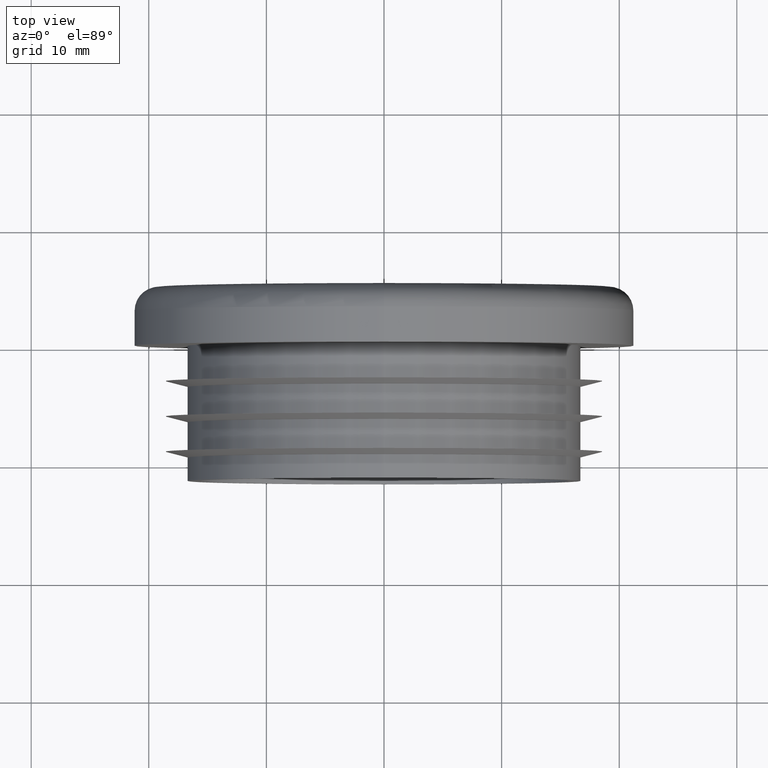
[diagram: clean part render]
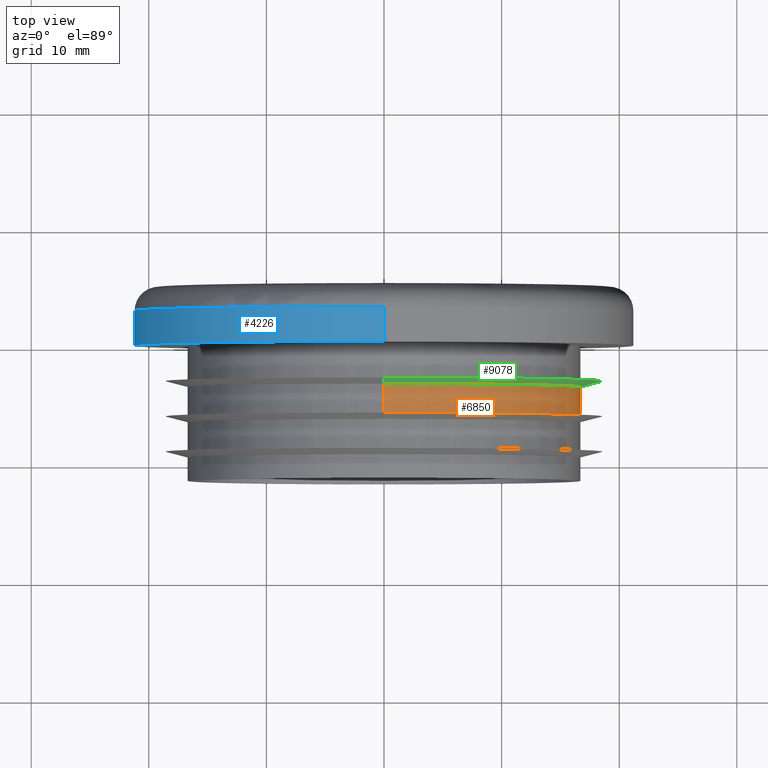
[diagram: same view with three faces highlighted in distinct colors, each labeled with its STEP entity id]
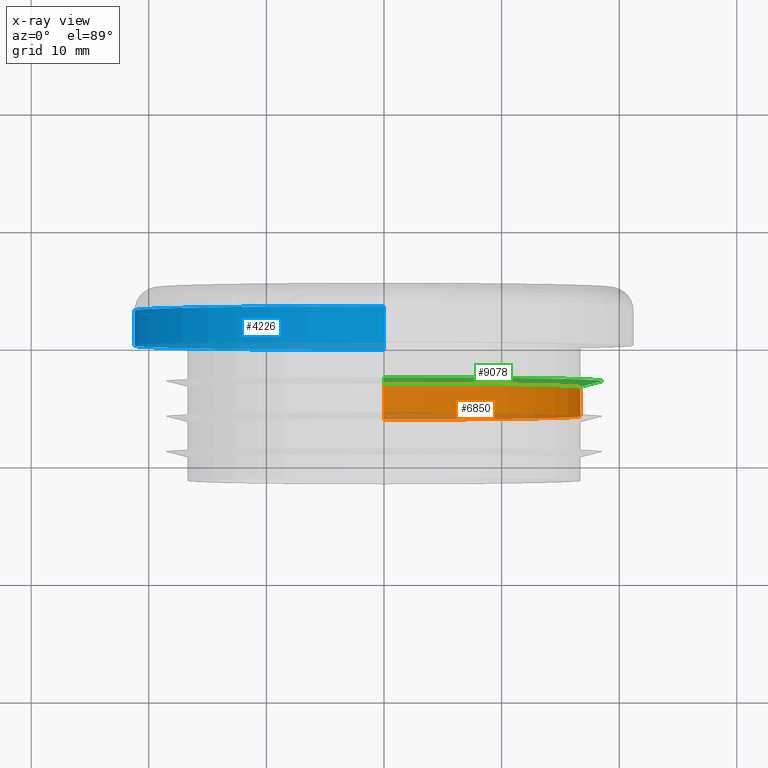
[diagram: x-ray of the same camera — body ghosted, the three highlighted faces saturated]
A machine part, top view with three faces highlighted in distinct colors.
The next image is the same camera in x-ray (body ghosted, the three faces saturated) — at least one of them is partly hidden behind the body in this view.
Their STEP definitions:

[orange] entity #6850 — the highlighted cylindrical surface (partial cylindrical patch) has radius 16.7 mm, axis along (-0, 1, -0).
#156 = VECTOR ( 'NONE', #8237, 1000.000000000000000 ) ;
#510 = EDGE_LOOP ( 'NONE', ( #3182, #5903, #3532, #4318 ) ) ;
#692 = DIRECTION ( 'NONE',  ( -0.0000000000000000000, 1.000000000000000000, -0.0000000000000000000 ) ) ;
#726 = DIRECTION ( 'NONE',  ( 0.0000000000000000000, 0.0000000000000000000, -1.000000000000000000 ) ) ;
#738 = DIRECTION ( 'NONE',  ( 0.0000000000000000000, -1.000000000000000000, 0.0000000000000000000 ) ) ;
#744 = CARTESIAN_POINT ( 'NONE',  ( 0.0000000000000000000, -5.999999999999999100, 0.0000000000000000000 ) ) ;
#1118 = LINE ( 'NONE', #3105, #7482 ) ;
#1495 = CIRCLE ( 'NONE', #3893, 16.69999999999999900 ) ;
#1960 = EDGE_CURVE ( 'NONE', #6422, #6080, #7632, .T. ) ;
#3037 = VERTEX_POINT ( 'NONE', #7131 ) ;
#3040 = CARTESIAN_POINT ( 'NONE',  ( 0.0000000000000000000, -11.50000000000000000, 0.0000000000000000000 ) ) ;
#3105 = CARTESIAN_POINT ( 'NONE',  ( 2.045160154576079800E-015, -11.50000000000000000, -16.69999999999999900 ) ) ;
#3182 = ORIENTED_EDGE ( 'NONE', *, *, #1960, .F. ) ;
#3532 = ORIENTED_EDGE ( 'NONE', *, *, #4222, .F. ) ;
#3893 = AXIS2_PLACEMENT_3D ( 'NONE', #5735, #692, #6566 ) ;
#4153 = CARTESIAN_POINT ( 'NONE',  ( 0.0000000000000000000, -11.50000000000000000, 16.69999999999999900 ) ) ;
#4222 = EDGE_CURVE ( 'NONE', #10264, #3037, #1495, .T. ) ;
#4318 = ORIENTED_EDGE ( 'NONE', *, *, #4401, .F. ) ;
#4401 = EDGE_CURVE ( 'NONE', #6080, #10264, #9128, .T. ) ;
#4485 = CARTESIAN_POINT ( 'NONE',  ( 0.0000000000000000000, -3.500000000000000900, 16.69999999999999900 ) ) ;
#4531 = CARTESIAN_POINT ( 'NONE',  ( 2.045160154576079800E-015, -5.999999999999999100, -16.69999999999999900 ) ) ;
#4999 = AXIS2_PLACEMENT_3D ( 'NONE', #744, #738, #726 ) ;
#5724 = CYLINDRICAL_SURFACE ( 'NONE', #6204, 16.69999999999999900 ) ;
#5735 = CARTESIAN_POINT ( 'NONE',  ( 0.0000000000000000000, -3.500000000000000900, 0.0000000000000000000 ) ) ;
#5903 = ORIENTED_EDGE ( 'NONE', *, *, #8553, .T. ) ;
#6080 = VERTEX_POINT ( 'NONE', #7768 ) ;
#6204 = AXIS2_PLACEMENT_3D ( 'NONE', #3040, #7188, #7907 ) ;
#6422 = VERTEX_POINT ( 'NONE', #4531 ) ;
#6566 = DIRECTION ( 'NONE',  ( 0.0000000000000000000, 0.0000000000000000000, 1.000000000000000000 ) ) ;
#6850 = ADVANCED_FACE ( 'NONE', ( #9870 ), #5724, .T. ) ;
#7131 = CARTESIAN_POINT ( 'NONE',  ( 2.045160154576079800E-015, -3.500000000000000900, -16.69999999999999900 ) ) ;
#7188 = DIRECTION ( 'NONE',  ( -0.0000000000000000000, 1.000000000000000000, -0.0000000000000000000 ) ) ;
#7482 = VECTOR ( 'NONE', #7966, 1000.000000000000000 ) ;
#7632 = CIRCLE ( 'NONE', #4999, 16.69999999999999900 ) ;
#7768 = CARTESIAN_POINT ( 'NONE',  ( 0.0000000000000000000, -5.999999999999999100, 16.69999999999999900 ) ) ;
#7907 = DIRECTION ( 'NONE',  ( 0.0000000000000000000, 0.0000000000000000000, 1.000000000000000000 ) ) ;
#7966 = DIRECTION ( 'NONE',  ( -0.0000000000000000000, 1.000000000000000000, -0.0000000000000000000 ) ) ;
#8237 = DIRECTION ( 'NONE',  ( -0.0000000000000000000, 1.000000000000000000, -0.0000000000000000000 ) ) ;
#8553 = EDGE_CURVE ( 'NONE', #6422, #3037, #1118, .T. ) ;
#9128 = LINE ( 'NONE', #4153, #156 ) ;
#9870 = FACE_OUTER_BOUND ( 'NONE', #510, .T. ) ;
#10264 = VERTEX_POINT ( 'NONE', #4485 ) ;

[blue] entity #4226 — the highlighted cylindrical surface (partial cylindrical patch) has radius 21.2 mm, axis along (-0, -1, -0).
#32 = ORIENTED_EDGE ( 'NONE', *, *, #3415, .T. ) ;
#58 = LINE ( 'NONE', #8214, #8312 ) ;
#638 = VERTEX_POINT ( 'NONE', #3001 ) ;
#956 = CYLINDRICAL_SURFACE ( 'NONE', #6667, 21.19999999999999900 ) ;
#1033 = ORIENTED_EDGE ( 'NONE', *, *, #1727, .T. ) ;
#1446 = EDGE_LOOP ( 'NONE', ( #9995, #1033, #5313, #32 ) ) ;
#1517 = DIRECTION ( 'NONE',  ( 0.0000000000000000000, 0.0000000000000000000, -1.000000000000000000 ) ) ;
#1727 = EDGE_CURVE ( 'NONE', #6645, #9898, #2627, .T. ) ;
#1769 = CARTESIAN_POINT ( 'NONE',  ( 0.0000000000000000000, 0.0000000000000000000, -21.19999999999999900 ) ) ;
#1911 = VERTEX_POINT ( 'NONE', #1769 ) ;
#2109 = CARTESIAN_POINT ( 'NONE',  ( 0.0000000000000000000, 3.000000000000000000, -21.19999999999999900 ) ) ;
#2627 = CIRCLE ( 'NONE', #6857, 21.19999999999999900 ) ;
#3001 = CARTESIAN_POINT ( 'NONE',  ( 2.596251214192388800E-015, 0.0000000000000000000, 21.19999999999999900 ) ) ;
#3415 = EDGE_CURVE ( 'NONE', #1911, #638, #7827, .T. ) ;
#4093 = DIRECTION ( 'NONE',  ( 0.0000000000000000000, 0.0000000000000000000, 1.000000000000000000 ) ) ;
#4099 = CARTESIAN_POINT ( 'NONE',  ( 0.0000000000000000000, 0.0000000000000000000, 0.0000000000000000000 ) ) ;
#4106 = DIRECTION ( 'NONE',  ( -0.0000000000000000000, -1.000000000000000000, -0.0000000000000000000 ) ) ;
#4115 = CARTESIAN_POINT ( 'NONE',  ( 0.0000000000000000000, 3.000000000000000000, 0.0000000000000000000 ) ) ;
#4226 = ADVANCED_FACE ( 'NONE', ( #5694 ), #956, .T. ) ;
#4898 = CARTESIAN_POINT ( 'NONE',  ( 2.596251214192388800E-015, 3.000000000000000000, 21.19999999999999900 ) ) ;
#4911 = DIRECTION ( 'NONE',  ( -0.0000000000000000000, -1.000000000000000000, -0.0000000000000000000 ) ) ;
#4945 = DIRECTION ( 'NONE',  ( 0.0000000000000000000, 0.0000000000000000000, 1.000000000000000000 ) ) ;
#5313 = ORIENTED_EDGE ( 'NONE', *, *, #8100, .T. ) ;
#5694 = FACE_OUTER_BOUND ( 'NONE', #1446, .T. ) ;
#6645 = VERTEX_POINT ( 'NONE', #4898 ) ;
#6667 = AXIS2_PLACEMENT_3D ( 'NONE', #10365, #4911, #1517 ) ;
#6857 = AXIS2_PLACEMENT_3D ( 'NONE', #4115, #4106, #4093 ) ;
#7402 = EDGE_CURVE ( 'NONE', #6645, #638, #8191, .T. ) ;
#7827 = CIRCLE ( 'NONE', #9872, 21.19999999999999900 ) ;
#7911 = CARTESIAN_POINT ( 'NONE',  ( 2.596251214192388800E-015, 5.000000000000000000, 21.19999999999999900 ) ) ;
#7958 = VECTOR ( 'NONE', #8491, 1000.000000000000000 ) ;
#8100 = EDGE_CURVE ( 'NONE', #9898, #1911, #58, .T. ) ;
#8191 = LINE ( 'NONE', #7911, #7958 ) ;
#8214 = CARTESIAN_POINT ( 'NONE',  ( 0.0000000000000000000, 5.000000000000000000, -21.19999999999999900 ) ) ;
#8312 = VECTOR ( 'NONE', #8970, 1000.000000000000000 ) ;
#8491 = DIRECTION ( 'NONE',  ( -0.0000000000000000000, -1.000000000000000000, -0.0000000000000000000 ) ) ;
#8970 = DIRECTION ( 'NONE',  ( -0.0000000000000000000, -1.000000000000000000, -0.0000000000000000000 ) ) ;
#9657 = DIRECTION ( 'NONE',  ( 0.0000000000000000000, 1.000000000000000000, 0.0000000000000000000 ) ) ;
#9872 = AXIS2_PLACEMENT_3D ( 'NONE', #4099, #9657, #4945 ) ;
#9898 = VERTEX_POINT ( 'NONE', #2109 ) ;
#9995 = ORIENTED_EDGE ( 'NONE', *, *, #7402, .F. ) ;
#10365 = CARTESIAN_POINT ( 'NONE',  ( 0.0000000000000000000, 5.000000000000000000, 0.0000000000000000000 ) ) ;

[green] entity #9078 — the highlighted conical surface has half-angle 75.256 deg.
#692 = DIRECTION ( 'NONE',  ( -0.0000000000000000000, 1.000000000000000000, -0.0000000000000000000 ) ) ;
#706 = CARTESIAN_POINT ( 'NONE',  ( 2.277843046414076800E-015, -3.000000000000000400, -18.59999999999999800 ) ) ;
#907 = VERTEX_POINT ( 'NONE', #706 ) ;
#1495 = CIRCLE ( 'NONE', #3893, 16.69999999999999900 ) ;
#1956 = CIRCLE ( 'NONE', #7197, 18.59999999999999800 ) ;
#2020 = VERTEX_POINT ( 'NONE', #7922 ) ;
#2038 = ORIENTED_EDGE ( 'NONE', *, *, #8286, .F. ) ;
#2066 = VECTOR ( 'NONE', #2513, 1000.000000000000200 ) ;
#2265 = DIRECTION ( 'NONE',  ( 0.0000000000000000000, 0.0000000000000000000, 1.000000000000000000 ) ) ;
#2319 = EDGE_CURVE ( 'NONE', #2020, #907, #1956, .T. ) ;
#2513 = DIRECTION ( 'NONE',  ( 1.184324736595607500E-016, 0.2544932992796441500, -0.9670745372626462500 ) ) ;
#3037 = VERTEX_POINT ( 'NONE', #7131 ) ;
#3493 = ORIENTED_EDGE ( 'NONE', *, *, #2319, .F. ) ;
#3883 = ORIENTED_EDGE ( 'NONE', *, *, #8097, .T. ) ;
#3893 = AXIS2_PLACEMENT_3D ( 'NONE', #5735, #692, #6566 ) ;
#3952 = CARTESIAN_POINT ( 'NONE',  ( 0.0000000000000000000, -3.500000000000000900, 0.0000000000000000000 ) ) ;
#4210 = CARTESIAN_POINT ( 'NONE',  ( 0.0000000000000000000, -3.000000000000000400, 0.0000000000000000000 ) ) ;
#4222 = EDGE_CURVE ( 'NONE', #10264, #3037, #1495, .T. ) ;
#4485 = CARTESIAN_POINT ( 'NONE',  ( 0.0000000000000000000, -3.500000000000000900, 16.69999999999999900 ) ) ;
#4626 = CONICAL_SURFACE ( 'NONE', #5374, 16.69999999999999900, 1.313472611823807600 ) ;
#4794 = DIRECTION ( 'NONE',  ( -0.0000000000000000000, 1.000000000000000000, -0.0000000000000000000 ) ) ;
#4881 = FACE_OUTER_BOUND ( 'NONE', #8819, .T. ) ;
#4998 = CARTESIAN_POINT ( 'NONE',  ( 0.0000000000000000000, -3.500000000000000900, 16.69999999999999900 ) ) ;
#5052 = DIRECTION ( 'NONE',  ( 0.0000000000000000000, 0.0000000000000000000, 1.000000000000000000 ) ) ;
#5221 = VECTOR ( 'NONE', #5823, 1000.000000000000200 ) ;
#5374 = AXIS2_PLACEMENT_3D ( 'NONE', #3952, #4794, #2265 ) ;
#5735 = CARTESIAN_POINT ( 'NONE',  ( 0.0000000000000000000, -3.500000000000000900, 0.0000000000000000000 ) ) ;
#5823 = DIRECTION ( 'NONE',  ( 0.0000000000000000000, 0.2544932992796441500, 0.9670745372626462500 ) ) ;
#5877 = ORIENTED_EDGE ( 'NONE', *, *, #4222, .T. ) ;
#6506 = LINE ( 'NONE', #6668, #2066 ) ;
#6566 = DIRECTION ( 'NONE',  ( 0.0000000000000000000, 0.0000000000000000000, 1.000000000000000000 ) ) ;
#6668 = CARTESIAN_POINT ( 'NONE',  ( 2.045160154576079800E-015, -3.500000000000000900, -16.69999999999999900 ) ) ;
#7131 = CARTESIAN_POINT ( 'NONE',  ( 2.045160154576079800E-015, -3.500000000000000900, -16.69999999999999900 ) ) ;
#7197 = AXIS2_PLACEMENT_3D ( 'NONE', #4210, #9759, #5052 ) ;
#7609 = LINE ( 'NONE', #4998, #5221 ) ;
#7922 = CARTESIAN_POINT ( 'NONE',  ( 0.0000000000000000000, -3.000000000000000400, 18.59999999999999800 ) ) ;
#8097 = EDGE_CURVE ( 'NONE', #3037, #907, #6506, .T. ) ;
#8286 = EDGE_CURVE ( 'NONE', #10264, #2020, #7609, .T. ) ;
#8819 = EDGE_LOOP ( 'NONE', ( #5877, #3883, #3493, #2038 ) ) ;
#9078 = ADVANCED_FACE ( 'NONE', ( #4881 ), #4626, .T. ) ;
#9759 = DIRECTION ( 'NONE',  ( -0.0000000000000000000, 1.000000000000000000, -0.0000000000000000000 ) ) ;
#10264 = VERTEX_POINT ( 'NONE', #4485 ) ;